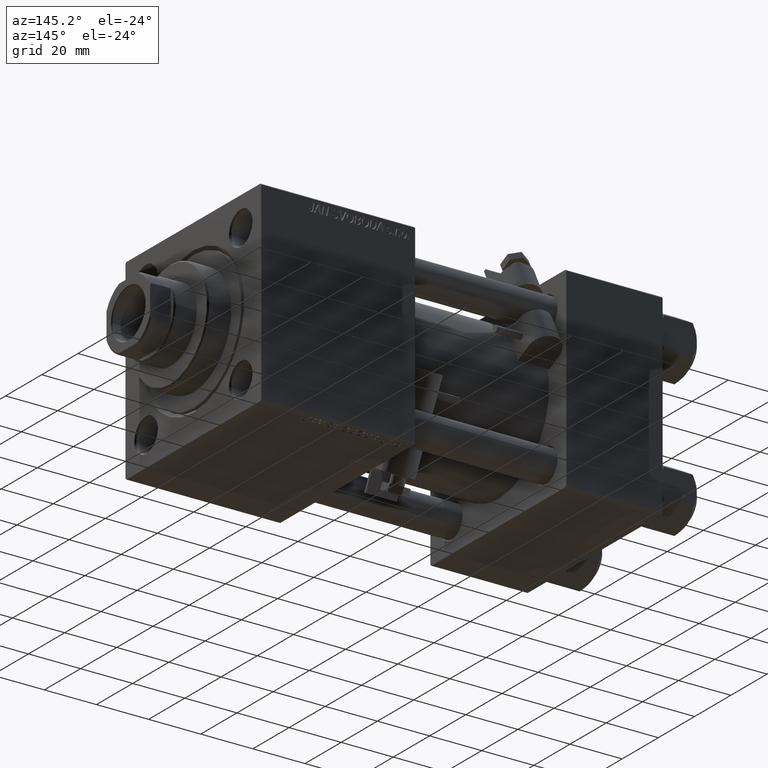
[diagram: clean part render]
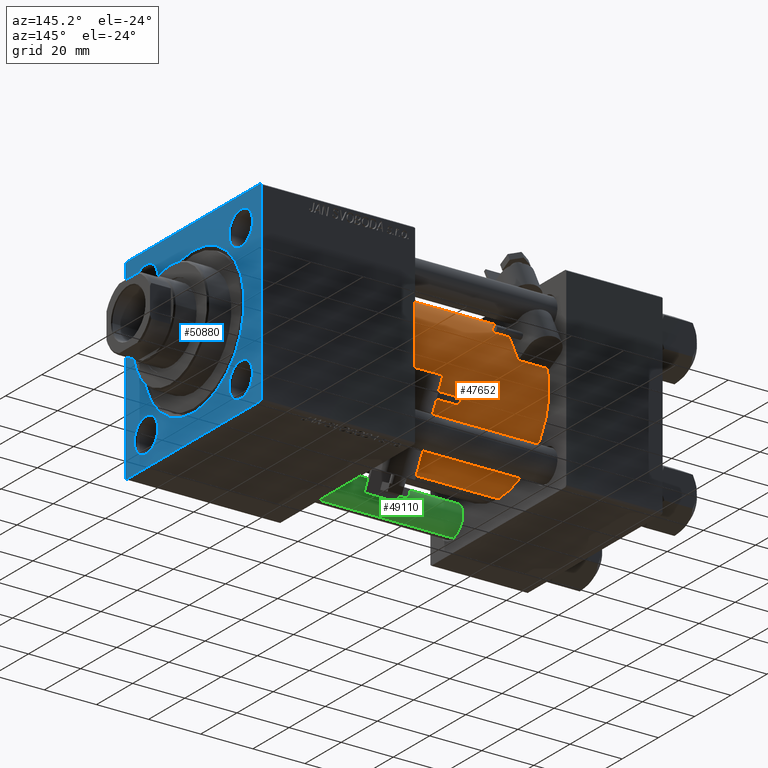
[diagram: same view with three faces highlighted in distinct colors, each labeled with its STEP entity id]
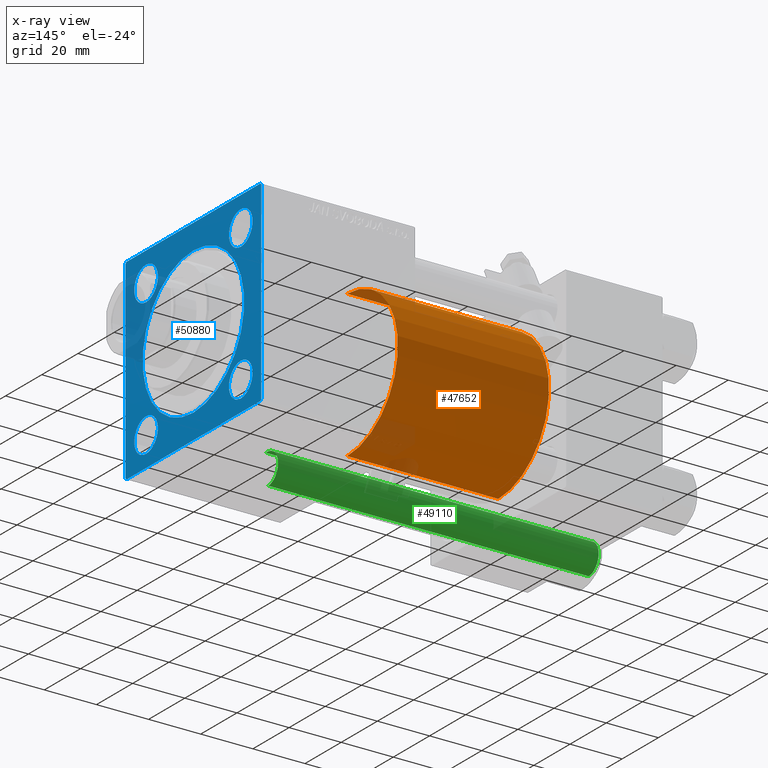
[diagram: x-ray of the same camera — body ghosted, the three highlighted faces saturated]
A machine part, auxiliary view with three faces highlighted in distinct colors.
The next image is the same camera in x-ray (body ghosted, the three faces saturated) — at least one of them is partly hidden behind the body in this view.
Their STEP definitions:

[orange] entity #47652 — the highlighted cylindrical surface (partial cylindrical patch) has radius 28 mm, axis along (-1, -0, -0).
#532 = CARTESIAN_POINT ( 'NONE',  ( 95.00000000000000000, -2.602085213965210642E-15, 0.000000000000000000 ) ) ;
#1190 = VERTEX_POINT ( 'NONE', #4358 ) ;
#2521 = EDGE_LOOP ( 'NONE', ( #30799, #32593, #49113, #3974 ) ) ;
#3341 = CARTESIAN_POINT ( 'NONE',  ( 95.00000000000000000, -2.602085213965210642E-15, 0.000000000000000000 ) ) ;
#3974 = ORIENTED_EDGE ( 'NONE', *, *, #28187, .F. ) ;
#4358 = CARTESIAN_POINT ( 'NONE',  ( 37.00000000000000000, 8.269258236473776482E-16, -28.00000000000000000 ) ) ;
#4681 = DIRECTION ( 'NONE',  ( 0.000000000000000000, 0.000000000000000000, -1.000000000000000000 ) ) ;
#6674 = LINE ( 'NONE', #45557, #48707 ) ;
#8045 = CARTESIAN_POINT ( 'NONE',  ( 95.00000000000000000, -2.602085213965210642E-15, 28.00000000000000000 ) ) ;
#8573 = DIRECTION ( 'NONE',  ( 1.000000000000000000, 0.000000000000000000, 0.000000000000000000 ) ) ;
#13697 = DIRECTION ( 'NONE',  ( -1.000000000000000000, -0.000000000000000000, -0.000000000000000000 ) ) ;
#14995 = FACE_OUTER_BOUND ( 'NONE', #2521, .T. ) ;
#17884 = EDGE_CURVE ( 'NONE', #31553, #1190, #25200, .T. ) ;
#19140 = DIRECTION ( 'NONE',  ( -1.000000000000000000, -0.000000000000000000, -0.000000000000000000 ) ) ;
#23610 = CARTESIAN_POINT ( 'NONE',  ( 37.00000000000000000, -2.602085213965210642E-15, 0.000000000000000000 ) ) ;
#25200 = LINE ( 'NONE', #32957, #43449 ) ;
#25251 = EDGE_CURVE ( 'NONE', #1190, #43921, #51191, .T. ) ;
#26394 = AXIS2_PLACEMENT_3D ( 'NONE', #3341, #19140, #27180 ) ;
#27180 = DIRECTION ( 'NONE',  ( 0.000000000000000000, 0.000000000000000000, 1.000000000000000000 ) ) ;
#27493 = DIRECTION ( 'NONE',  ( 0.000000000000000000, 0.000000000000000000, 1.000000000000000000 ) ) ;
#28187 = EDGE_CURVE ( 'NONE', #45663, #43921, #6674, .T. ) ;
#30799 = ORIENTED_EDGE ( 'NONE', *, *, #48479, .F. ) ;
#31553 = VERTEX_POINT ( 'NONE', #44388 ) ;
#32593 = ORIENTED_EDGE ( 'NONE', *, *, #17884, .T. ) ;
#32957 = CARTESIAN_POINT ( 'NONE',  ( 95.00000000000000000, 8.269258236473776482E-16, -28.00000000000000000 ) ) ;
#36351 = CARTESIAN_POINT ( 'NONE',  ( 37.00000000000000000, -2.602085213965210642E-15, 28.00000000000000000 ) ) ;
#37165 = CIRCLE ( 'NONE', #50403, 28.00000000000000000 ) ;
#42072 = AXIS2_PLACEMENT_3D ( 'NONE', #23610, #48394, #27493 ) ;
#42708 = CYLINDRICAL_SURFACE ( 'NONE', #26394, 28.00000000000000000 ) ;
#43449 = VECTOR ( 'NONE', #48512, 1000.000000000000000 ) ;
#43921 = VERTEX_POINT ( 'NONE', #36351 ) ;
#44388 = CARTESIAN_POINT ( 'NONE',  ( 95.00000000000000000, 8.269258236473776482E-16, -28.00000000000000000 ) ) ;
#45557 = CARTESIAN_POINT ( 'NONE',  ( 95.00000000000000000, -2.602085213965210642E-15, 28.00000000000000000 ) ) ;
#45663 = VERTEX_POINT ( 'NONE', #8045 ) ;
#47652 = ADVANCED_FACE ( 'NONE', ( #14995 ), #42708, .T. ) ;
#48394 = DIRECTION ( 'NONE',  ( 1.000000000000000000, -0.000000000000000000, 0.000000000000000000 ) ) ;
#48479 = EDGE_CURVE ( 'NONE', #31553, #45663, #37165, .T. ) ;
#48512 = DIRECTION ( 'NONE',  ( -1.000000000000000000, -0.000000000000000000, -0.000000000000000000 ) ) ;
#48707 = VECTOR ( 'NONE', #13697, 1000.000000000000000 ) ;
#49113 = ORIENTED_EDGE ( 'NONE', *, *, #25251, .T. ) ;
#50403 = AXIS2_PLACEMENT_3D ( 'NONE', #532, #8573, #4681 ) ;
#51191 = CIRCLE ( 'NONE', #42072, 28.00000000000000000 ) ;

[blue] entity #50880 — the highlighted planar face has unit normal (-1, 0, 0).
#426 = VERTEX_POINT ( 'NONE', #8884 ) ;
#730 = CARTESIAN_POINT ( 'NONE',  ( 154.0000000000000000, 26.14999999999999858, -32.64999999999998437 ) ) ;
#1204 = EDGE_CURVE ( 'NONE', #23121, #8504, #24967, .T. ) ;
#1245 = EDGE_CURVE ( 'NONE', #8504, #23121, #6744, .T. ) ;
#1982 = DIRECTION ( 'NONE',  ( -1.000000000000000000, -0.000000000000000000, 0.000000000000000000 ) ) ;
#2054 = VERTEX_POINT ( 'NONE', #730 ) ;
#2516 = ORIENTED_EDGE ( 'NONE', *, *, #21144, .T. ) ;
#2795 = CIRCLE ( 'NONE', #45805, 6.499999999999974243 ) ;
#3522 = DIRECTION ( 'NONE',  ( 0.000000000000000000, 0.000000000000000000, 1.000000000000000000 ) ) ;
#3591 = ORIENTED_EDGE ( 'NONE', *, *, #37992, .T. ) ;
#3972 = DIRECTION ( 'NONE',  ( 0.000000000000000000, 0.000000000000000000, 1.000000000000000000 ) ) ;
#4054 = CARTESIAN_POINT ( 'NONE',  ( 154.0000000000000000, -26.14999999999999147, 32.64999999999999858 ) ) ;
#4331 = DIRECTION ( 'NONE',  ( 0.000000000000000000, 0.000000000000000000, 1.000000000000000000 ) ) ;
#4814 = ORIENTED_EDGE ( 'NONE', *, *, #38522, .F. ) ;
#5504 = ORIENTED_EDGE ( 'NONE', *, *, #1204, .T. ) ;
#5875 = LINE ( 'NONE', #6378, #16903 ) ;
#6350 = EDGE_CURVE ( 'NONE', #47318, #16521, #5875, .T. ) ;
#6378 = CARTESIAN_POINT ( 'NONE',  ( 154.0000000000000000, 37.50000000000000000, -36.99999999999999289 ) ) ;
#6693 = EDGE_CURVE ( 'NONE', #2054, #25271, #2795, .T. ) ;
#6744 = CIRCLE ( 'NONE', #13381, 27.99999999999999645 ) ;
#6769 = CARTESIAN_POINT ( 'NONE',  ( 154.0000000000000000, 37.00000000000000000, 37.49999999999999289 ) ) ;
#7201 = ORIENTED_EDGE ( 'NONE', *, *, #9040, .T. ) ;
#7348 = CIRCLE ( 'NONE', #36188, 6.499999999999974243 ) ;
#7879 = LINE ( 'NONE', #32220, #9092 ) ;
#8504 = VERTEX_POINT ( 'NONE', #25053 ) ;
#8884 = CARTESIAN_POINT ( 'NONE',  ( 154.0000000000000000, -26.15000000000000213, -32.64999999999998437 ) ) ;
#9040 = EDGE_CURVE ( 'NONE', #31315, #25173, #30893, .T. ) ;
#9092 = VECTOR ( 'NONE', #48025, 1000.000000000000000 ) ;
#9715 = CARTESIAN_POINT ( 'NONE',  ( 154.0000000000000000, 26.14999999999999858, -26.15000000000000213 ) ) ;
#9794 = CARTESIAN_POINT ( 'NONE',  ( 154.0000000000000000, -26.15000000000000213, -26.15000000000000213 ) ) ;
#10512 = CARTESIAN_POINT ( 'NONE',  ( 154.0000000000000000, 26.14999999999999858, 26.15000000000000213 ) ) ;
#10857 = ORIENTED_EDGE ( 'NONE', *, *, #44233, .T. ) ;
#11062 = ORIENTED_EDGE ( 'NONE', *, *, #26184, .T. ) ;
#11209 = VECTOR ( 'NONE', #38176, 1000.000000000000000 ) ;
#12276 = VERTEX_POINT ( 'NONE', #50728 ) ;
#12439 = EDGE_LOOP ( 'NONE', ( #44689, #5504 ) ) ;
#13030 = FACE_BOUND ( 'NONE', #17500, .T. ) ;
#13381 = AXIS2_PLACEMENT_3D ( 'NONE', #21179, #29976, #28964 ) ;
#13477 = CARTESIAN_POINT ( 'NONE',  ( 154.0000000000000000, -37.50000000000000000, 36.99999999999995026 ) ) ;
#13738 = ORIENTED_EDGE ( 'NONE', *, *, #30322, .T. ) ;
#13914 = DIRECTION ( 'NONE',  ( 0.000000000000000000, 0.000000000000000000, 1.000000000000000000 ) ) ;
#13976 = VECTOR ( 'NONE', #17116, 1000.000000000000114 ) ;
#14138 = CARTESIAN_POINT ( 'NONE',  ( 154.0000000000000000, 37.50000000000000000, -36.99999999999999289 ) ) ;
#14377 = CARTESIAN_POINT ( 'NONE',  ( 154.0000000000000000, -37.50000000000000711, -37.00000000000000711 ) ) ;
#15456 = CIRCLE ( 'NONE', #41088, 6.500000000000008882 ) ;
#15852 = AXIS2_PLACEMENT_3D ( 'NONE', #25340, #37746, #13914 ) ;
#16521 = VERTEX_POINT ( 'NONE', #14138 ) ;
#16903 = VECTOR ( 'NONE', #22181, 999.9999999999998863 ) ;
#17116 = DIRECTION ( 'NONE',  ( -0.000000000000000000, -0.7071067811865474617, -0.7071067811865474617 ) ) ;
#17500 = EDGE_LOOP ( 'NONE', ( #10857, #19131 ) ) ;
#17754 = EDGE_CURVE ( 'NONE', #47318, #25173, #30653, .T. ) ;
#17791 = DIRECTION ( 'NONE',  ( 0.000000000000000000, 0.000000000000000000, 1.000000000000000000 ) ) ;
#17818 = EDGE_CURVE ( 'NONE', #12276, #47391, #19254, .T. ) ;
#18152 = CIRCLE ( 'NONE', #45447, 6.499999999999974243 ) ;
#18809 = EDGE_CURVE ( 'NONE', #47762, #426, #38526, .T. ) ;
#19131 = ORIENTED_EDGE ( 'NONE', *, *, #18809, .T. ) ;
#19202 = ORIENTED_EDGE ( 'NONE', *, *, #6350, .T. ) ;
#19254 = LINE ( 'NONE', #31941, #25280 ) ;
#19656 = VERTEX_POINT ( 'NONE', #21459 ) ;
#19845 = ORIENTED_EDGE ( 'NONE', *, *, #17754, .F. ) ;
#20289 = CARTESIAN_POINT ( 'NONE',  ( 154.0000000000000000, 0.000000000000000000, 0.000000000000000000 ) ) ;
#20998 = CARTESIAN_POINT ( 'NONE',  ( 154.0000000000000000, -37.50000000000000000, 36.99999999999995026 ) ) ;
#21144 = EDGE_CURVE ( 'NONE', #19656, #50488, #15456, .T. ) ;
#21152 = AXIS2_PLACEMENT_3D ( 'NONE', #9794, #25607, #50198 ) ;
#21179 = CARTESIAN_POINT ( 'NONE',  ( 154.0000000000000000, 0.000000000000000000, 0.000000000000000000 ) ) ;
#21459 = CARTESIAN_POINT ( 'NONE',  ( 154.0000000000000000, 26.14999999999999858, 19.64999999999999503 ) ) ;
#21725 = AXIS2_PLACEMENT_3D ( 'NONE', #27668, #43696, #4331 ) ;
#21916 = CARTESIAN_POINT ( 'NONE',  ( 154.0000000000000000, 26.14999999999999858, 26.15000000000000213 ) ) ;
#22027 = EDGE_CURVE ( 'NONE', #50488, #19656, #26263, .T. ) ;
#22181 = DIRECTION ( 'NONE',  ( -0.000000000000000000, 0.7071067811865425767, 0.7071067811865525687 ) ) ;
#22373 = CARTESIAN_POINT ( 'NONE',  ( 154.0000000000000000, 37.50000000000000000, 37.49999999999999289 ) ) ;
#23121 = VERTEX_POINT ( 'NONE', #30716 ) ;
#23863 = CARTESIAN_POINT ( 'NONE',  ( 154.0000000000000000, 26.14999999999999858, -19.65000000000002345 ) ) ;
#24032 = AXIS2_PLACEMENT_3D ( 'NONE', #20289, #24451, #28587 ) ;
#24194 = FACE_BOUND ( 'NONE', #36666, .T. ) ;
#24451 = DIRECTION ( 'NONE',  ( -1.000000000000000000, -0.000000000000000000, 0.000000000000000000 ) ) ;
#24959 = CARTESIAN_POINT ( 'NONE',  ( 154.0000000000000000, 37.50000000000000000, 37.49999999999999289 ) ) ;
#24967 = CIRCLE ( 'NONE', #15852, 27.99999999999999645 ) ;
#25053 = CARTESIAN_POINT ( 'NONE',  ( 154.0000000000000000, 0.000000000000000000, -27.99999999999999645 ) ) ;
#25173 = VERTEX_POINT ( 'NONE', #33348 ) ;
#25271 = VERTEX_POINT ( 'NONE', #23863 ) ;
#25280 = VECTOR ( 'NONE', #39709, 1000.000000000000114 ) ;
#25340 = CARTESIAN_POINT ( 'NONE',  ( 154.0000000000000000, 0.000000000000000000, 0.000000000000000000 ) ) ;
#25607 = DIRECTION ( 'NONE',  ( -1.000000000000000000, -0.000000000000000000, 0.000000000000000000 ) ) ;
#25852 = CIRCLE ( 'NONE', #21725, 6.500000000000002665 ) ;
#26184 = EDGE_CURVE ( 'NONE', #42842, #48579, #48978, .T. ) ;
#26263 = CIRCLE ( 'NONE', #44447, 6.500000000000008882 ) ;
#26331 = CARTESIAN_POINT ( 'NONE',  ( 154.0000000000000000, -26.14999999999999147, 26.14999999999999503 ) ) ;
#26585 = DIRECTION ( 'NONE',  ( -1.000000000000000000, -0.000000000000000000, 0.000000000000000000 ) ) ;
#26852 = ORIENTED_EDGE ( 'NONE', *, *, #17818, .T. ) ;
#26922 = ORIENTED_EDGE ( 'NONE', *, *, #44078, .T. ) ;
#27519 = EDGE_LOOP ( 'NONE', ( #26922, #3591 ) ) ;
#27668 = CARTESIAN_POINT ( 'NONE',  ( 154.0000000000000000, -26.14999999999999147, 26.14999999999999503 ) ) ;
#27811 = CARTESIAN_POINT ( 'NONE',  ( 154.0000000000000000, 26.14999999999999858, -26.15000000000000213 ) ) ;
#28378 = VERTEX_POINT ( 'NONE', #47611 ) ;
#28587 = DIRECTION ( 'NONE',  ( 0.000000000000000000, 0.000000000000000000, 1.000000000000000000 ) ) ;
#28964 = DIRECTION ( 'NONE',  ( 0.000000000000000000, 0.000000000000000000, 1.000000000000000000 ) ) ;
#29099 = FACE_BOUND ( 'NONE', #27519, .T. ) ;
#29598 = CARTESIAN_POINT ( 'NONE',  ( 154.0000000000000000, 37.00000000000000000, -37.50000000000000000 ) ) ;
#29976 = DIRECTION ( 'NONE',  ( -1.000000000000000000, -0.000000000000000000, 0.000000000000000000 ) ) ;
#30322 = EDGE_CURVE ( 'NONE', #25271, #2054, #18152, .T. ) ;
#30653 = LINE ( 'NONE', #42569, #11209 ) ;
#30716 = CARTESIAN_POINT ( 'NONE',  ( 154.0000000000000000, 3.429011037612588881E-15, 27.99999999999999645 ) ) ;
#30893 = LINE ( 'NONE', #38927, #33380 ) ;
#31315 = VERTEX_POINT ( 'NONE', #14377 ) ;
#31599 = EDGE_CURVE ( 'NONE', #48579, #31315, #7879, .T. ) ;
#31941 = CARTESIAN_POINT ( 'NONE',  ( 154.0000000000000000, 37.00000000000000000, 37.49999999999999289 ) ) ;
#31959 = FACE_BOUND ( 'NONE', #12439, .T. ) ;
#32014 = CARTESIAN_POINT ( 'NONE',  ( 154.0000000000000000, 26.14999999999999858, 32.65000000000001279 ) ) ;
#32162 = CIRCLE ( 'NONE', #38774, 6.500000000000002665 ) ;
#32220 = CARTESIAN_POINT ( 'NONE',  ( 154.0000000000000000, -37.50000000000000000, 37.49999999999997868 ) ) ;
#33043 = DIRECTION ( 'NONE',  ( 0.000000000000000000, 0.000000000000000000, 1.000000000000000000 ) ) ;
#33295 = DIRECTION ( 'NONE',  ( -1.000000000000000000, -0.000000000000000000, 0.000000000000000000 ) ) ;
#33348 = CARTESIAN_POINT ( 'NONE',  ( 154.0000000000000000, -36.99999999999998579, -37.50000000000000000 ) ) ;
#33380 = VECTOR ( 'NONE', #43065, 1000.000000000000000 ) ;
#33734 = DIRECTION ( 'NONE',  ( 0.000000000000000000, -1.000000000000000000, -1.850371707708594316E-16 ) ) ;
#34109 = ORIENTED_EDGE ( 'NONE', *, *, #41394, .T. ) ;
#35967 = CARTESIAN_POINT ( 'NONE',  ( 154.0000000000000000, -26.15000000000000213, -19.65000000000002345 ) ) ;
#36079 = DIRECTION ( 'NONE',  ( -1.000000000000000000, -0.000000000000000000, 0.000000000000000000 ) ) ;
#36094 = PLANE ( 'NONE',  #24032 ) ;
#36103 = EDGE_LOOP ( 'NONE', ( #47107, #13738 ) ) ;
#36188 = AXIS2_PLACEMENT_3D ( 'NONE', #47568, #47038, #3522 ) ;
#36666 = EDGE_LOOP ( 'NONE', ( #2516, #40239 ) ) ;
#36869 = FACE_OUTER_BOUND ( 'NONE', #43915, .T. ) ;
#37093 = VECTOR ( 'NONE', #33734, 1000.000000000000000 ) ;
#37628 = LINE ( 'NONE', #24959, #37093 ) ;
#37666 = DIRECTION ( 'NONE',  ( 0.000000000000000000, 0.000000000000000000, -1.000000000000000000 ) ) ;
#37746 = DIRECTION ( 'NONE',  ( -1.000000000000000000, -0.000000000000000000, 0.000000000000000000 ) ) ;
#37972 = DIRECTION ( 'NONE',  ( -1.000000000000000000, -0.000000000000000000, 0.000000000000000000 ) ) ;
#37992 = EDGE_CURVE ( 'NONE', #48002, #28378, #25852, .T. ) ;
#38176 = DIRECTION ( 'NONE',  ( 0.000000000000000000, -1.000000000000000000, 0.000000000000000000 ) ) ;
#38522 = EDGE_CURVE ( 'NONE', #12276, #16521, #49328, .T. ) ;
#38526 = CIRCLE ( 'NONE', #21152, 6.499999999999974243 ) ;
#38774 = AXIS2_PLACEMENT_3D ( 'NONE', #26331, #26585, #42371 ) ;
#38927 = CARTESIAN_POINT ( 'NONE',  ( 154.0000000000000000, -36.99999999999998579, -37.50000000000000000 ) ) ;
#39709 = DIRECTION ( 'NONE',  ( 0.000000000000000000, -0.7071067811865474617, 0.7071067811865474617 ) ) ;
#39977 = FACE_BOUND ( 'NONE', #36103, .T. ) ;
#40239 = ORIENTED_EDGE ( 'NONE', *, *, #22027, .T. ) ;
#41088 = AXIS2_PLACEMENT_3D ( 'NONE', #21916, #37972, #45232 ) ;
#41394 = EDGE_CURVE ( 'NONE', #47391, #42842, #37628, .T. ) ;
#41588 = VECTOR ( 'NONE', #37666, 1000.000000000000000 ) ;
#42371 = DIRECTION ( 'NONE',  ( 0.000000000000000000, 0.000000000000000000, 1.000000000000000000 ) ) ;
#42569 = CARTESIAN_POINT ( 'NONE',  ( 154.0000000000000000, 37.50000000000000000, -37.50000000000000000 ) ) ;
#42842 = VERTEX_POINT ( 'NONE', #44715 ) ;
#43065 = DIRECTION ( 'NONE',  ( 0.000000000000000000, 0.7071067811865671127, -0.7071067811865279218 ) ) ;
#43696 = DIRECTION ( 'NONE',  ( -1.000000000000000000, -0.000000000000000000, 0.000000000000000000 ) ) ;
#43915 = EDGE_LOOP ( 'NONE', ( #45039, #7201, #19845, #19202, #4814, #26852, #34109, #11062 ) ) ;
#44078 = EDGE_CURVE ( 'NONE', #28378, #48002, #32162, .T. ) ;
#44233 = EDGE_CURVE ( 'NONE', #426, #47762, #7348, .T. ) ;
#44447 = AXIS2_PLACEMENT_3D ( 'NONE', #10512, #1982, #17791 ) ;
#44689 = ORIENTED_EDGE ( 'NONE', *, *, #1245, .T. ) ;
#44715 = CARTESIAN_POINT ( 'NONE',  ( 154.0000000000000000, -36.99999999999997158, 37.49999999999997868 ) ) ;
#45039 = ORIENTED_EDGE ( 'NONE', *, *, #31599, .T. ) ;
#45232 = DIRECTION ( 'NONE',  ( 0.000000000000000000, 0.000000000000000000, 1.000000000000000000 ) ) ;
#45447 = AXIS2_PLACEMENT_3D ( 'NONE', #9715, #33295, #33043 ) ;
#45805 = AXIS2_PLACEMENT_3D ( 'NONE', #27811, #36079, #3972 ) ;
#47038 = DIRECTION ( 'NONE',  ( -1.000000000000000000, -0.000000000000000000, 0.000000000000000000 ) ) ;
#47107 = ORIENTED_EDGE ( 'NONE', *, *, #6693, .T. ) ;
#47318 = VERTEX_POINT ( 'NONE', #29598 ) ;
#47391 = VERTEX_POINT ( 'NONE', #6769 ) ;
#47568 = CARTESIAN_POINT ( 'NONE',  ( 154.0000000000000000, -26.15000000000000213, -26.15000000000000213 ) ) ;
#47611 = CARTESIAN_POINT ( 'NONE',  ( 154.0000000000000000, -26.14999999999999147, 19.64999999999999503 ) ) ;
#47762 = VERTEX_POINT ( 'NONE', #35967 ) ;
#48002 = VERTEX_POINT ( 'NONE', #4054 ) ;
#48025 = DIRECTION ( 'NONE',  ( 0.000000000000000000, -9.251858538542972814E-17, -1.000000000000000000 ) ) ;
#48579 = VERTEX_POINT ( 'NONE', #20998 ) ;
#48978 = LINE ( 'NONE', #13477, #13976 ) ;
#49328 = LINE ( 'NONE', #22373, #41588 ) ;
#50198 = DIRECTION ( 'NONE',  ( 0.000000000000000000, 0.000000000000000000, 1.000000000000000000 ) ) ;
#50488 = VERTEX_POINT ( 'NONE', #32014 ) ;
#50728 = CARTESIAN_POINT ( 'NONE',  ( 154.0000000000000000, 37.50000000000000000, 36.99999999999999289 ) ) ;
#50880 = ADVANCED_FACE ( 'NONE', ( #24194, #29099, #13030, #39977, #31959, #36869 ), #36094, .F. ) ;

[green] entity #49110 — the highlighted cylindrical surface (edge-blend (fillet) strip) has radius 6 mm, axis along (-1, -0, -0).
#297 = ORIENTED_EDGE ( 'NONE', *, *, #27163, .T. ) ;
#672 = CYLINDRICAL_SURFACE ( 'NONE', #23962, 6.000000000000000888 ) ;
#1305 = EDGE_CURVE ( 'NONE', #16609, #17060, #2764, .T. ) ;
#2764 = LINE ( 'NONE', #34367, #41518 ) ;
#5485 = CARTESIAN_POINT ( 'NONE',  ( -6.000000000000000888, 0.000000000000000000, 123.5000000000000426 ) ) ;
#6899 = DIRECTION ( 'NONE',  ( -0.000000000000000000, -0.000000000000000000, -1.000000000000000000 ) ) ;
#7158 = LINE ( 'NONE', #10294, #20541 ) ;
#9151 = VERTEX_POINT ( 'NONE', #5485 ) ;
#10294 = CARTESIAN_POINT ( 'NONE',  ( -6.000000000000000888, 0.000000000000000000, 124.0000000000000000 ) ) ;
#10320 = CARTESIAN_POINT ( 'NONE',  ( 0.000000000000000000, 0.000000000000000000, 0.4999999999999865663 ) ) ;
#11009 = DIRECTION ( 'NONE',  ( 1.000000000000000000, 0.000000000000000000, 0.000000000000000000 ) ) ;
#11833 = CARTESIAN_POINT ( 'NONE',  ( 0.000000000000000000, 0.000000000000000000, 124.0000000000000000 ) ) ;
#12139 = EDGE_CURVE ( 'NONE', #47979, #17060, #23547, .T. ) ;
#15153 = DIRECTION ( 'NONE',  ( 0.000000000000000000, 0.000000000000000000, -1.000000000000000000 ) ) ;
#16609 = VERTEX_POINT ( 'NONE', #24227 ) ;
#17060 = VERTEX_POINT ( 'NONE', #41985 ) ;
#20541 = VECTOR ( 'NONE', #34885, 1000.000000000000000 ) ;
#23547 = CIRCLE ( 'NONE', #30161, 6.000000000000000888 ) ;
#23962 = AXIS2_PLACEMENT_3D ( 'NONE', #11833, #35661, #43680 ) ;
#24227 = CARTESIAN_POINT ( 'NONE',  ( 6.000000000000000888, 7.347880794884120722E-16, 123.5000000000000426 ) ) ;
#24671 = CIRCLE ( 'NONE', #33756, 6.000000000000000888 ) ;
#25422 = ORIENTED_EDGE ( 'NONE', *, *, #1305, .F. ) ;
#27163 = EDGE_CURVE ( 'NONE', #16609, #9151, #24671, .T. ) ;
#29505 = DIRECTION ( 'NONE',  ( -0.000000000000000000, -0.000000000000000000, 1.000000000000000000 ) ) ;
#30161 = AXIS2_PLACEMENT_3D ( 'NONE', #10320, #29505, #49699 ) ;
#30947 = CARTESIAN_POINT ( 'NONE',  ( 0.000000000000000000, 0.000000000000000000, 123.5000000000000426 ) ) ;
#31519 = FACE_OUTER_BOUND ( 'NONE', #35718, .T. ) ;
#33756 = AXIS2_PLACEMENT_3D ( 'NONE', #30947, #15153, #11009 ) ;
#34183 = ORIENTED_EDGE ( 'NONE', *, *, #42136, .T. ) ;
#34367 = CARTESIAN_POINT ( 'NONE',  ( 6.000000000000000888, 7.347880794884120722E-16, 124.0000000000000000 ) ) ;
#34885 = DIRECTION ( 'NONE',  ( -0.000000000000000000, -0.000000000000000000, -1.000000000000000000 ) ) ;
#35661 = DIRECTION ( 'NONE',  ( -0.000000000000000000, -0.000000000000000000, -1.000000000000000000 ) ) ;
#35718 = EDGE_LOOP ( 'NONE', ( #25422, #297, #34183, #48361 ) ) ;
#37750 = CARTESIAN_POINT ( 'NONE',  ( -6.000000000000000888, 0.000000000000000000, 0.4999999999999865663 ) ) ;
#41518 = VECTOR ( 'NONE', #6899, 1000.000000000000000 ) ;
#41985 = CARTESIAN_POINT ( 'NONE',  ( 6.000000000000000888, 7.347880794884120722E-16, 0.4999999999999865663 ) ) ;
#42136 = EDGE_CURVE ( 'NONE', #9151, #47979, #7158, .T. ) ;
#43680 = DIRECTION ( 'NONE',  ( -1.000000000000000000, 0.000000000000000000, 0.000000000000000000 ) ) ;
#47979 = VERTEX_POINT ( 'NONE', #37750 ) ;
#48361 = ORIENTED_EDGE ( 'NONE', *, *, #12139, .T. ) ;
#49110 = ADVANCED_FACE ( 'NONE', ( #31519 ), #672, .T. ) ;
#49699 = DIRECTION ( 'NONE',  ( 1.000000000000000000, 0.000000000000000000, 0.000000000000000000 ) ) ;